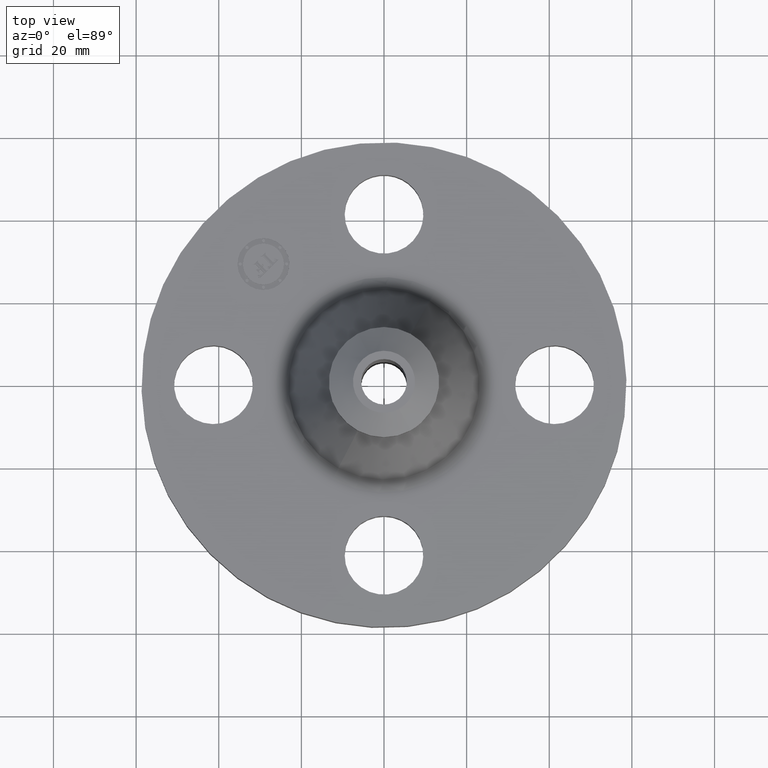
[diagram: clean part render]
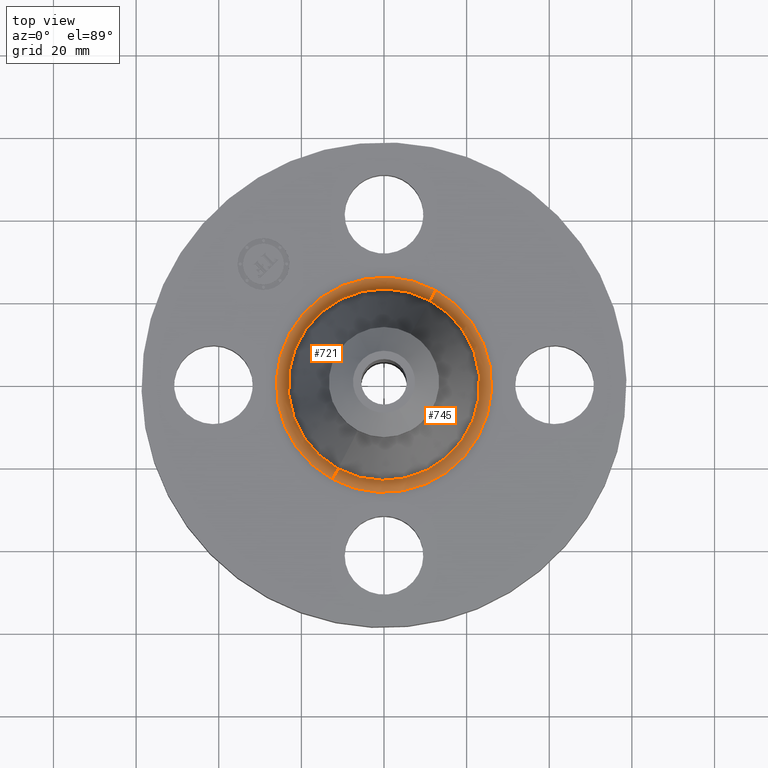
[diagram: same view with one multi-face feature highlighted, each face labeled with its STEP entity id]
A machine part, top view. The highlighted faces form ONE feature: a constant-radius fillet chain: 2 tangent blend faces with common blend radius 3.048 mm. The faces share edges in the B-rep.
Their STEP definitions:
[1] entity #721 (Torus):
#322=AXIS2_PLACEMENT_3D('Circle Axis2P3D',#320,#321,$) ;
#694=AXIS2_PLACEMENT_3D('Torus Axis2P3D',#691,#692,#693) ;
#698=AXIS2_PLACEMENT_3D('Circle Axis2P3D',#696,#697,$) ;
#705=AXIS2_PLACEMENT_3D('Circle Axis2P3D',#703,#704,$) ;
#712=AXIS2_PLACEMENT_3D('Circle Axis2P3D',#710,#711,$) ;
#320=CARTESIAN_POINT('Axis2P3D Location',(0.,-1.287956618E-011,0.560000000002)) ;
#324=CARTESIAN_POINT('Vertex',(-0.491835211718,-0.900298316156,0.560000000003)) ;
#326=CARTESIAN_POINT('Vertex',(0.491835211721,0.90029831616,0.560000000003)) ;
#691=CARTESIAN_POINT('Axis2P3D Location',(0.,0.,0.680000000003)) ;
#696=CARTESIAN_POINT('Axis2P3D Location',(-0.491835211718,-0.900298316156,0.680000000003)) ;
#700=CARTESIAN_POINT('Vertex',(-0.437379010894,-0.800616909175,0.641294195606)) ;
#703=CARTESIAN_POINT('Axis2P3D Location',(0.,0.,0.641294195606)) ;
#707=CARTESIAN_POINT('Vertex',(0.437379010894,0.800616909175,0.641294195606)) ;
#710=CARTESIAN_POINT('Axis2P3D Location',(0.491835211718,0.900298316156,0.680000000003)) ;
#321=DIRECTION('Axis2P3D Direction',(0.,0.,-0.0393700787402)) ;
#692=DIRECTION('Axis2P3D Direction',(0.,0.,-0.0393700787402)) ;
#693=DIRECTION('Axis2P3D XDirection',(-0.0188750212049,-0.0345504945626,0.)) ;
#697=DIRECTION('Axis2P3D Direction',(0.0345504945626,-0.0188750212049,0.)) ;
#704=DIRECTION('Axis2P3D Direction',(-0.,0.,-0.0393700787402)) ;
#711=DIRECTION('Axis2P3D Direction',(-0.0345504945626,0.0188750212049,0.)) ;
#716=ORIENTED_EDGE('',*,*,#328,.F.) ;
#717=ORIENTED_EDGE('',*,*,#702,.T.) ;
#718=ORIENTED_EDGE('',*,*,#709,.T.) ;
#719=ORIENTED_EDGE('',*,*,#714,.F.) ;
#721=ADVANCED_FACE('PartBody',(#720),#695,.F.) ;
#323=CIRCLE('generated circle',#322,1.02588446404) ;
#699=CIRCLE('generated circle',#698,0.12) ;
#706=CIRCLE('generated circle',#705,0.912298106118) ;
#713=CIRCLE('generated circle',#712,0.12) ;
#695=TOROIDAL_SURFACE('homeo Torus',#694,1.02588446404,0.12) ;
#328=EDGE_CURVE('',#325,#327,#323,.T.) ;
#702=EDGE_CURVE('',#325,#701,#699,.T.) ;
#709=EDGE_CURVE('',#701,#708,#706,.T.) ;
#714=EDGE_CURVE('',#327,#708,#713,.T.) ;
#715=EDGE_LOOP('',(#716,#717,#718,#719)) ;
#720=FACE_OUTER_BOUND('',#715,.T.) ;
#325=VERTEX_POINT('',#324) ;
#327=VERTEX_POINT('',#326) ;
#701=VERTEX_POINT('',#700) ;
#708=VERTEX_POINT('',#707) ;
[2] entity #745 (Torus):
#331=AXIS2_PLACEMENT_3D('Circle Axis2P3D',#329,#330,$) ;
#698=AXIS2_PLACEMENT_3D('Circle Axis2P3D',#696,#697,$) ;
#712=AXIS2_PLACEMENT_3D('Circle Axis2P3D',#710,#711,$) ;
#732=AXIS2_PLACEMENT_3D('Torus Axis2P3D',#729,#730,#731) ;
#736=AXIS2_PLACEMENT_3D('Circle Axis2P3D',#734,#735,$) ;
#324=CARTESIAN_POINT('Vertex',(-0.491835211718,-0.900298316156,0.560000000003)) ;
#326=CARTESIAN_POINT('Vertex',(0.491835211721,0.90029831616,0.560000000003)) ;
#329=CARTESIAN_POINT('Axis2P3D Location',(0.,-1.287956618E-011,0.560000000002)) ;
#696=CARTESIAN_POINT('Axis2P3D Location',(-0.491835211718,-0.900298316156,0.680000000003)) ;
#700=CARTESIAN_POINT('Vertex',(-0.437379010894,-0.800616909175,0.641294195606)) ;
#707=CARTESIAN_POINT('Vertex',(0.437379010894,0.800616909175,0.641294195606)) ;
#710=CARTESIAN_POINT('Axis2P3D Location',(0.491835211718,0.900298316156,0.680000000003)) ;
#729=CARTESIAN_POINT('Axis2P3D Location',(0.,0.,0.680000000003)) ;
#734=CARTESIAN_POINT('Axis2P3D Location',(0.,0.,0.641294195606)) ;
#330=DIRECTION('Axis2P3D Direction',(0.,0.,-0.0393700787402)) ;
#697=DIRECTION('Axis2P3D Direction',(0.0345504945626,-0.0188750212049,0.)) ;
#711=DIRECTION('Axis2P3D Direction',(-0.0345504945626,0.0188750212049,0.)) ;
#730=DIRECTION('Axis2P3D Direction',(0.,0.,-0.0393700787402)) ;
#731=DIRECTION('Axis2P3D XDirection',(0.0188750212049,0.0345504945626,0.)) ;
#735=DIRECTION('Axis2P3D Direction',(-0.,0.,-0.0393700787402)) ;
#740=ORIENTED_EDGE('',*,*,#333,.F.) ;
#741=ORIENTED_EDGE('',*,*,#714,.T.) ;
#742=ORIENTED_EDGE('',*,*,#738,.T.) ;
#743=ORIENTED_EDGE('',*,*,#702,.F.) ;
#745=ADVANCED_FACE('PartBody',(#744),#733,.F.) ;
#332=CIRCLE('generated circle',#331,1.02588446404) ;
#699=CIRCLE('generated circle',#698,0.12) ;
#713=CIRCLE('generated circle',#712,0.12) ;
#737=CIRCLE('generated circle',#736,0.912298106118) ;
#733=TOROIDAL_SURFACE('homeo Torus',#732,1.02588446404,0.12) ;
#333=EDGE_CURVE('',#327,#325,#332,.T.) ;
#702=EDGE_CURVE('',#325,#701,#699,.T.) ;
#714=EDGE_CURVE('',#327,#708,#713,.T.) ;
#738=EDGE_CURVE('',#708,#701,#737,.T.) ;
#739=EDGE_LOOP('',(#740,#741,#742,#743)) ;
#744=FACE_OUTER_BOUND('',#739,.T.) ;
#325=VERTEX_POINT('',#324) ;
#327=VERTEX_POINT('',#326) ;
#701=VERTEX_POINT('',#700) ;
#708=VERTEX_POINT('',#707) ;